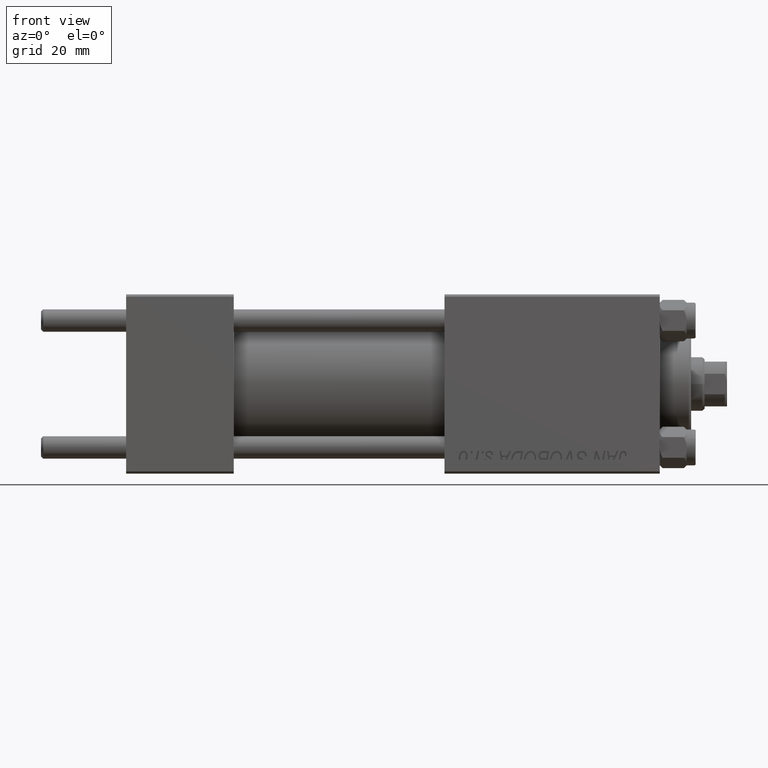
[diagram: clean part render]
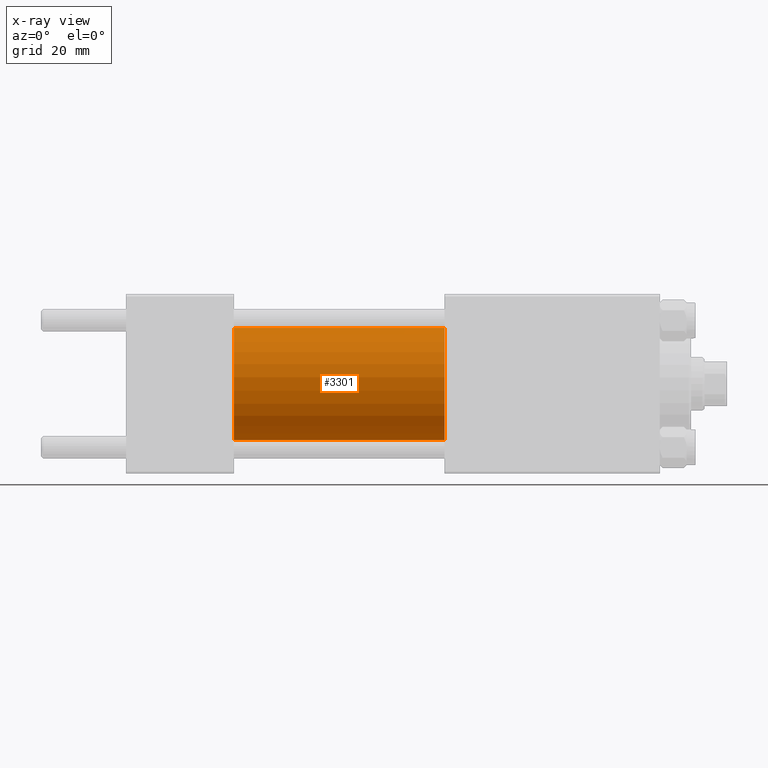
[diagram: x-ray — body ghosted, one internal face saturated and labeled with its STEP entity id]
A machine part, front view, then the same camera in x-ray: the body is ghosted and one INTERNAL B-rep face — a face not visible from any outside direction — is saturated and labeled: STEP entity #3301.
In plain terms, the highlighted cylindrical surface (partial cylindrical patch) has radius 12.5 mm, axis along (-1, -0, -0).
Its self-contained STEP definition (entity closure, byte-faithful):
#222 = DIRECTION ( 'NONE',  ( -1.000000000000000000, -0.000000000000000000, -0.000000000000000000 ) ) ;
#2274 = DIRECTION ( 'NONE',  ( 0.000000000000000000, 0.000000000000000000, -1.000000000000000000 ) ) ;
#2382 = VECTOR ( 'NONE', #22369, 1000.000000000000000 ) ;
#2484 = CARTESIAN_POINT ( 'NONE',  ( 24.00000000000000000, 0.000000000000000000, 12.49999999999999645 ) ) ;
#3301 = ADVANCED_FACE ( 'NONE', ( #15937 ), #12870, .F. ) ;
#3993 = CARTESIAN_POINT ( 'NONE',  ( 71.00000000000001421, 0.000000000000000000, 12.49999999999999645 ) ) ;
#4250 = VERTEX_POINT ( 'NONE', #35381 ) ;
#4978 = EDGE_CURVE ( 'NONE', #26014, #24002, #40421, .T. ) ;
#5914 = VECTOR ( 'NONE', #222, 1000.000000000000000 ) ;
#7008 = CARTESIAN_POINT ( 'NONE',  ( 71.00000000000001421, 1.530808498934191127E-15, -12.49999999999999645 ) ) ;
#7667 = EDGE_CURVE ( 'NONE', #26014, #13769, #23147, .T. ) ;
#9317 = CARTESIAN_POINT ( 'NONE',  ( 71.00000000000001421, 0.000000000000000000, 12.49999999999999645 ) ) ;
#9739 = ORIENTED_EDGE ( 'NONE', *, *, #24887, .F. ) ;
#10788 = LINE ( 'NONE', #7008, #2382 ) ;
#12870 = CYLINDRICAL_SURFACE ( 'NONE', #22681, 12.49999999999999645 ) ;
#13769 = VERTEX_POINT ( 'NONE', #2484 ) ;
#13851 = CARTESIAN_POINT ( 'NONE',  ( 71.00000000000001421, 0.000000000000000000, 0.000000000000000000 ) ) ;
#15937 = FACE_OUTER_BOUND ( 'NONE', #32693, .T. ) ;
#20670 = CIRCLE ( 'NONE', #48824, 12.49999999999999645 ) ;
#22202 = DIRECTION ( 'NONE',  ( 1.000000000000000000, 0.000000000000000000, 0.000000000000000000 ) ) ;
#22369 = DIRECTION ( 'NONE',  ( -1.000000000000000000, -0.000000000000000000, -0.000000000000000000 ) ) ;
#22681 = AXIS2_PLACEMENT_3D ( 'NONE', #24480, #43590, #23748 ) ;
#22759 = ORIENTED_EDGE ( 'NONE', *, *, #4978, .T. ) ;
#23147 = LINE ( 'NONE', #3993, #5914 ) ;
#23748 = DIRECTION ( 'NONE',  ( 0.000000000000000000, 0.000000000000000000, 1.000000000000000000 ) ) ;
#24002 = VERTEX_POINT ( 'NONE', #33511 ) ;
#24480 = CARTESIAN_POINT ( 'NONE',  ( 71.00000000000001421, 0.000000000000000000, 0.000000000000000000 ) ) ;
#24887 = EDGE_CURVE ( 'NONE', #13769, #4250, #20670, .T. ) ;
#26014 = VERTEX_POINT ( 'NONE', #9317 ) ;
#30514 = CARTESIAN_POINT ( 'NONE',  ( 24.00000000000000000, 0.000000000000000000, 0.000000000000000000 ) ) ;
#32693 = EDGE_LOOP ( 'NONE', ( #22759, #47889, #9739, #38394 ) ) ;
#33511 = CARTESIAN_POINT ( 'NONE',  ( 71.00000000000001421, 1.530808498934191127E-15, -12.49999999999999645 ) ) ;
#35381 = CARTESIAN_POINT ( 'NONE',  ( 24.00000000000000000, 1.530808498934191127E-15, -12.49999999999999645 ) ) ;
#35610 = AXIS2_PLACEMENT_3D ( 'NONE', #13851, #37019, #2274 ) ;
#37019 = DIRECTION ( 'NONE',  ( 1.000000000000000000, 0.000000000000000000, 0.000000000000000000 ) ) ;
#37259 = EDGE_CURVE ( 'NONE', #24002, #4250, #10788, .T. ) ;
#38394 = ORIENTED_EDGE ( 'NONE', *, *, #7667, .F. ) ;
#40421 = CIRCLE ( 'NONE', #35610, 12.49999999999999645 ) ;
#43590 = DIRECTION ( 'NONE',  ( -1.000000000000000000, -0.000000000000000000, -0.000000000000000000 ) ) ;
#45868 = DIRECTION ( 'NONE',  ( 0.000000000000000000, 0.000000000000000000, -1.000000000000000000 ) ) ;
#47889 = ORIENTED_EDGE ( 'NONE', *, *, #37259, .T. ) ;
#48824 = AXIS2_PLACEMENT_3D ( 'NONE', #30514, #22202, #45868 ) ;